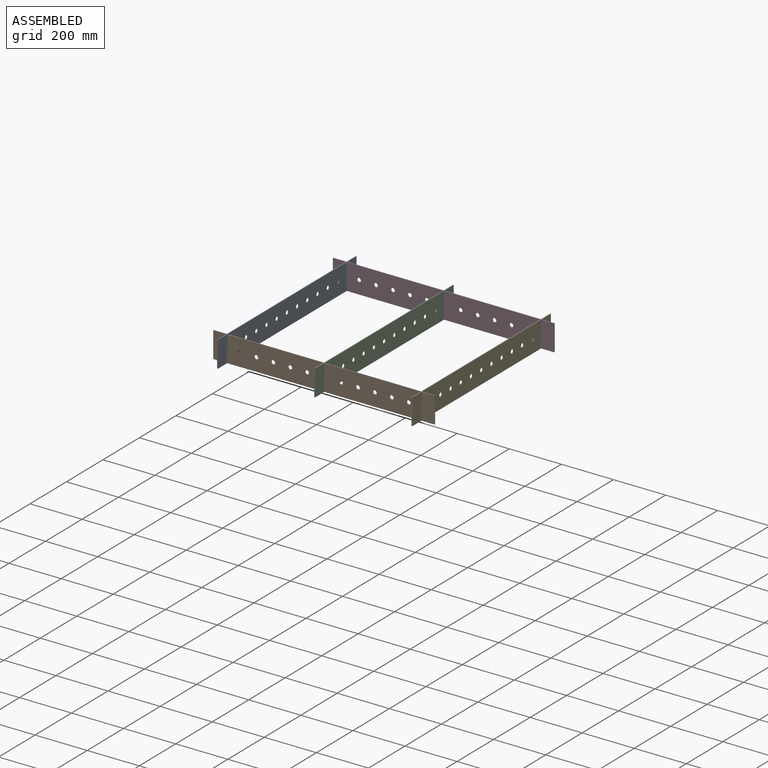
[diagram: assembled view]
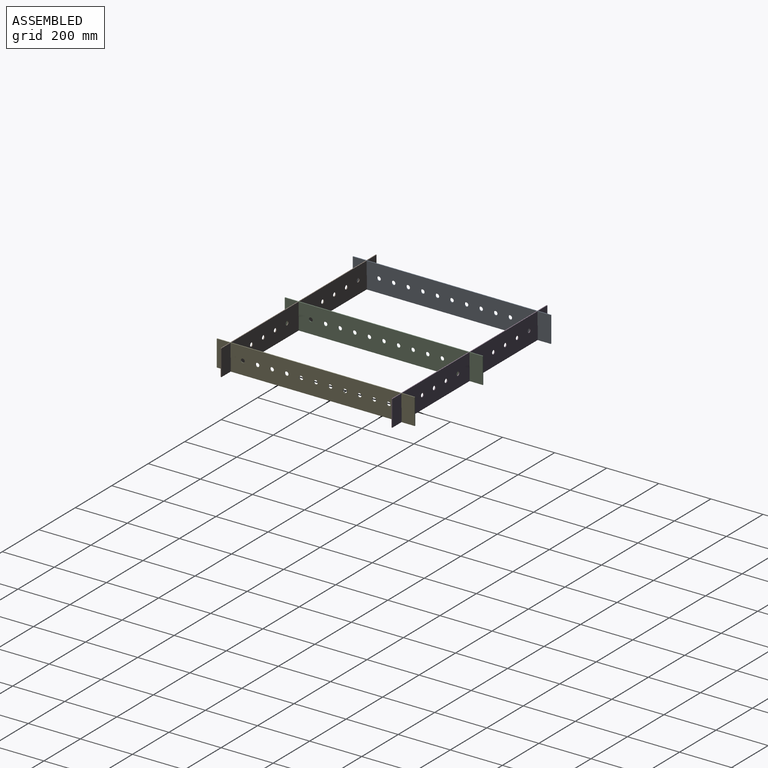
[diagram: assembled view, second angle]
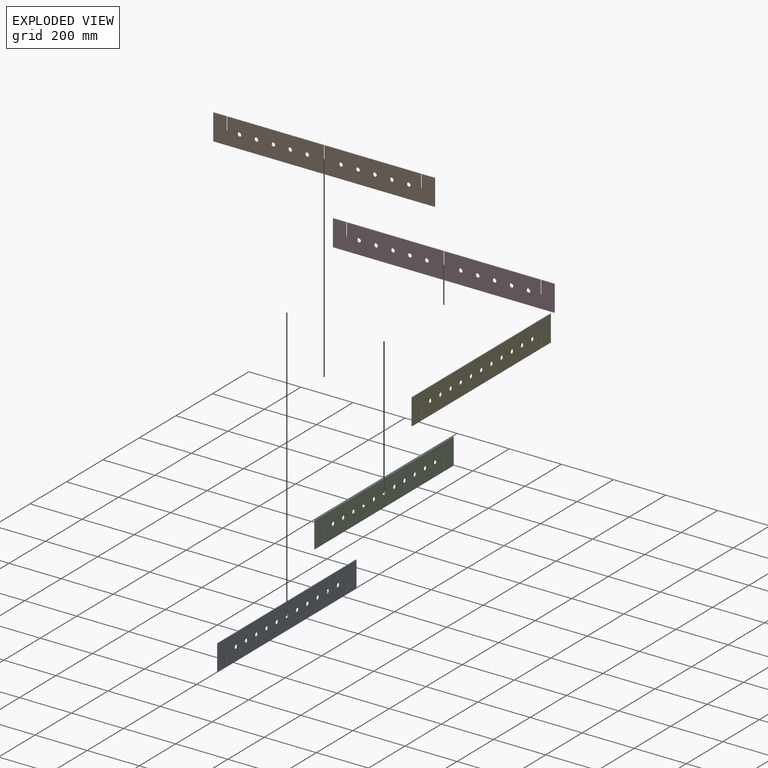
[diagram: exploded view]
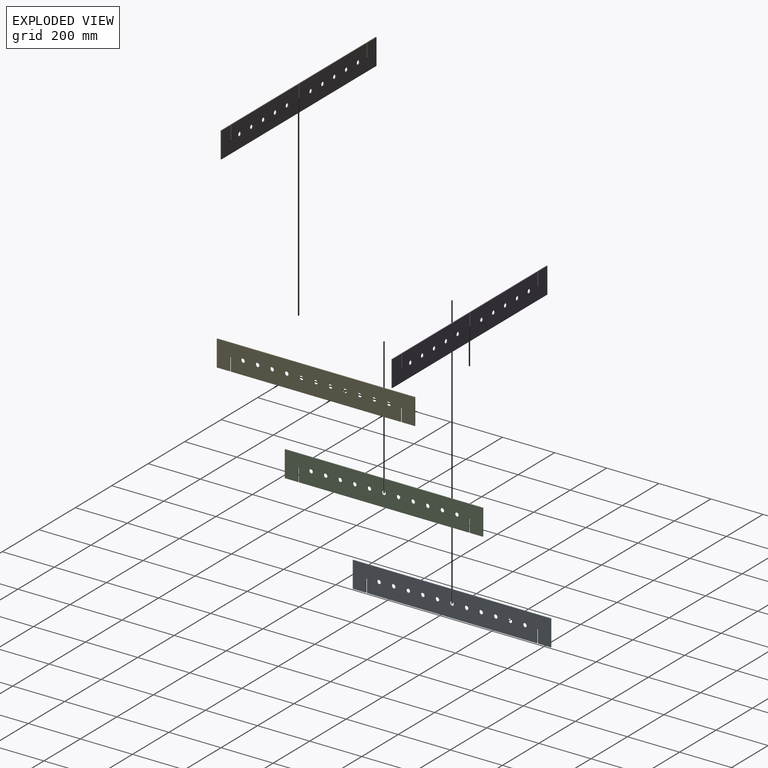
[diagram: exploded view, second angle]
ASSEMBLY  parts=5 mates=4
PART A: 25 faces, bbox 760x3x100 mm
  f0: plane 50x3mm, normal (-1,0,0), area 150mm2, adj f1,f22,f23,f24
  f1: plane 50x3mm, normal (0,0,-1), area 150mm2, adj f0,f2,f23,f24
  f2: plane 100x3mm, normal (1,0,0), area 300mm2, adj f1,f3,f23,f24
  f3: plane 760x3mm, normal (0,0,1), area 2280mm2, adj f2,f4,f23,f24
  f4: plane 100x3mm, normal (-1,0,0), area 300mm2, adj f3,f5,f23,f24
  f5: plane 50x3mm, normal (0,0,-1), area 150mm2, adj f4,f6,f23,f24
  f6: plane 50x3mm, normal (1,0,0), area 150mm2, adj f5,f7,f23,f24
  f7: plane 4x3mm, normal (0,0,-1), area 12mm2, adj f6,f8,f23,f24
  f8: plane 50x3mm, normal (-1,0,0), area 150mm2, adj f7,f9,f23,f24
  f9: plane 652x3mm, normal (0,0,-1), area 1956mm2, adj f8,f10,f23,f24
  f10: plane 50x3mm, normal (1,0,0), area 150mm2, adj f9,f22,f23,f24
  f11: cylinder r=7.5mm len=15mm, axis (0,1,0), area 141.4mm2, adj f23,f24
  f12: cylinder r=7.5mm len=15mm, axis (0,1,0), area 141.4mm2, adj f23,f24
  f13: cylinder r=7.5mm len=15mm, axis (0,1,0), area 141.4mm2, adj f23,f24
  f14: cylinder r=7.5mm len=15mm, axis (0,1,0), area 141.4mm2, adj f23,f24
  f15: cylinder r=7.5mm len=15mm, axis (0,1,0), area 141.4mm2, adj f23,f24
  f16: cylinder r=7.5mm len=15mm, axis (0,1,0), area 141.4mm2, adj f23,f24
  f17: cylinder r=7.5mm len=15mm, axis (0,1,0), area 141.4mm2, adj f23,f24
  f18: cylinder r=7.5mm len=15mm, axis (0,1,0), area 141.4mm2, adj f23,f24
  f19: cylinder r=7.5mm len=15mm, axis (0,1,0), area 141.4mm2, adj f23,f24
  f20: cylinder r=7.5mm len=15mm, axis (0,1,0), area 141.4mm2, adj f23,f24
  f21: cylinder r=7.5mm len=15mm, axis (0,1,0), area 141.4mm2, adj f23,f24
  f22: plane 4x3mm, normal (0,0,-1), area 12mm2, adj f0,f10,f23,f24
  f23: plane 760x100mm, normal (0,-1,0), area 73656.1mm2, adj f0,f1,f2,f3,f4,f5,f6,f7
  f24: plane 760x100mm, normal (0,1,0), area 73656.1mm2, adj f0,f1,f2,f3,f4,f5,f6,f7
PART B: 28 faces, bbox 850x3x100 mm
  f0: plane 369x3mm, normal (0,0,1), area 1107mm2, adj f1,f24,f26,f27
  f1: plane 50x3mm, normal (-1,0,0), area 150mm2, adj f0,f2,f26,f27
  f2: plane 4x3mm, normal (0,0,1), area 12mm2, adj f1,f3,f26,f27
  f3: plane 50x3mm, normal (1,0,0), area 150mm2, adj f2,f4,f26,f27
  f4: plane 369x3mm, normal (0,0,1), area 1107mm2, adj f3,f5,f26,f27
  f5: plane 50x3mm, normal (-1,0,0), area 150mm2, adj f4,f6,f26,f27
  f6: plane 4x3mm, normal (0,0,1), area 12mm2, adj f5,f7,f26,f27
  f7: plane 50x3mm, normal (1,0,0), area 150mm2, adj f6,f8,f26,f27
  f8: plane 50x3mm, normal (0,0,1), area 150mm2, adj f7,f9,f26,f27
  f9: plane 100x3mm, normal (-1,0,0), area 300mm2, adj f8,f10,f26,f27
  f10: plane 850x3mm, normal (0,0,-1), area 2550mm2, adj f9,f11,f26,f27
  f11: plane 100x3mm, normal (1,0,0), area 300mm2, adj f10,f12,f26,f27
  f12: plane 50x3mm, normal (0,0,1), area 150mm2, adj f11,f13,f26,f27
  f13: plane 50x3mm, normal (-1,0,0), area 150mm2, adj f12,f14,f26,f27
  f14: plane 4x3mm, normal (0,0,1), area 12mm2, adj f13,f24,f26,f27
  f15: cylinder r=7.5mm len=15mm, axis (0,1,0), area 141.4mm2, adj f26,f27
  f16: cylinder r=7.5mm len=15mm, axis (0,1,0), area 141.4mm2, adj f26,f27
  f17: cylinder r=7.5mm len=15mm, axis (0,1,0), area 141.4mm2, adj f26,f27
  f18: cylinder r=7.5mm len=15mm, axis (0,1,0), area 141.4mm2, adj f26,f27
  f19: cylinder r=7.5mm len=15mm, axis (0,1,0), area 141.4mm2, adj f26,f27
  f20: cylinder r=7.5mm len=15mm, axis (0,1,0), area 141.4mm2, adj f26,f27
  f21: cylinder r=7.5mm len=15mm, axis (0,1,0), area 141.4mm2, adj f26,f27
  f22: cylinder r=7.5mm len=15mm, axis (0,1,0), area 141.4mm2, adj f26,f27
  f23: cylinder r=7.5mm len=15mm, axis (0,1,0), area 141.4mm2, adj f26,f27
  f24: plane 50x3mm, normal (1,0,0), area 150mm2, adj f0,f14,f26,f27
  f25: cylinder r=7.5mm len=15mm, axis (0,1,0), area 141.4mm2, adj f26,f27
  f26: plane 850x100mm, normal (0,-1,0), area 82632.9mm2, adj f0,f1,f2,f3,f4,f5,f6,f7
  f27: plane 850x100mm, normal (0,1,0), area 82632.9mm2, adj f0,f1,f2,f3,f4,f5,f6,f7
PART C: same geometry as A
PART D: same geometry as B
PART E: same geometry as A
PLACE A rot(axis=(0,0,1),90deg) t=(-578.82,-45.56,-29.92)mm
PLACE B t=(-169.54,-263.96,-7.84)mm
PLACE C rot(axis=(0,0,-1),90deg) t=(-202.82,170.64,-29.92)mm
PLACE D rot(axis=(0,0,1),0deg) t=(-169.54,392.04,-7.84)mm
PLACE E rot(axis=(0,0,-1),90deg) t=(170.18,170.64,-29.92)mm
MATE fastened E.f7 <-> D.f14  axis (0,0,-1) through (168.68,390.54,-120.15)mm
MATE fastened D.f2 <-> C.f7  axis (0,0,1) through (-204.32,390.54,-120.15)mm
MATE fastened B.f14 <-> E.f22  axis (0,0,1) through (168.68,-265.46,-120.15)mm
MATE fastened A.f7 <-> B.f6  axis (0,0,-1) through (-577.32,-265.46,-120.15)mm
